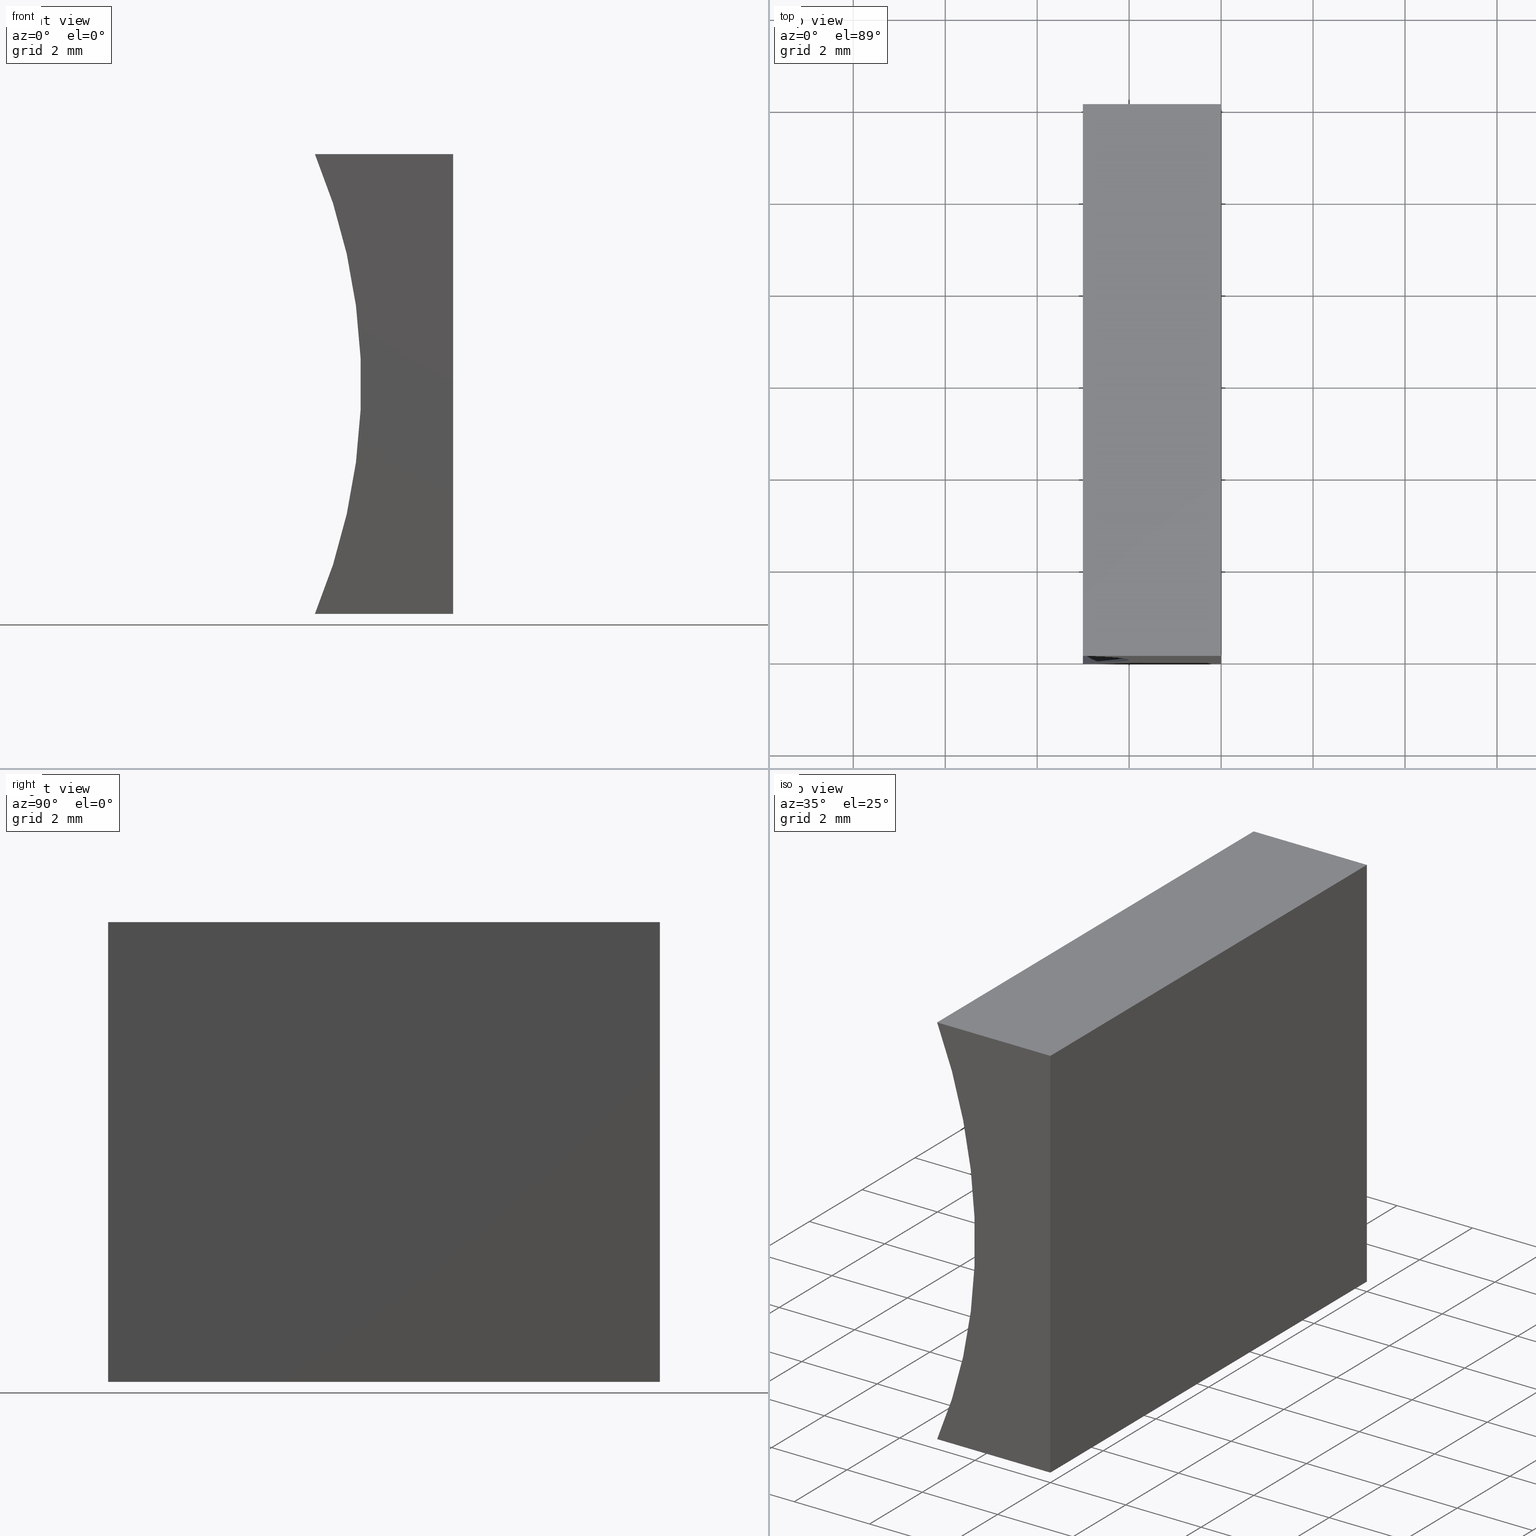
[diagram: canonical four-view strip — front | top / right | iso, engineering-drawing reading convention]
A machine part, canonical four-view strip (front | top / right | iso — engineering-drawing reading convention). The complete STEP part file that produces these views, byte-faithful:
ISO-10303-21;
HEADER;
FILE_DESCRIPTION (( 'STEP AP214' ),
    '1' );
FILE_NAME ('155340.STEP',
    '2019-06-28T02:10:09',
    ( 'user' ),
    ( '΢���й�' ),
    'SwSTEP 2.0',
    'SolidWorks 2016',
    '' );
FILE_SCHEMA (( 'AUTOMOTIVE_DESIGN' ));
ENDSEC;

DATA;
#1 = LINE ( 'NONE', #194, #73 ) ;
#2 = STYLED_ITEM ( 'NONE', ( #71 ), #20 ) ;
#3 = SURFACE_STYLE_USAGE ( .BOTH. , #90 ) ;
#4 = AXIS2_PLACEMENT_3D ( 'NONE', #57, #193, #155 ) ;
#5 =( GEOMETRIC_REPRESENTATION_CONTEXT ( 3 ) GLOBAL_UNCERTAINTY_ASSIGNED_CONTEXT ( ( #49 ) ) GLOBAL_UNIT_ASSIGNED_CONTEXT ( ( #60, #128, #200 ) ) REPRESENTATION_CONTEXT ( 'NONE', 'WORKASPACE' ) );
#6 = DIRECTION ( 'NONE',  ( -0.0000000000000000000, -1.000000000000000000, -0.0000000000000000000 ) ) ;
#7 = ORIENTED_EDGE ( 'NONE', *, *, #147, .F. ) ;
#8 = LINE ( 'NONE', #26, #48 ) ;
#9 = DIRECTION ( 'NONE',  ( -0.0000000000000000000, -1.000000000000000000, -0.0000000000000000000 ) ) ;
#10 = AXIS2_PLACEMENT_3D ( 'NONE', #66, #125, #27 ) ;
#11 = UNCERTAINTY_MEASURE_WITH_UNIT (LENGTH_MEASURE( 1.000000000000000100E-005 ), #76, 'distance_accuracy_value', 'NONE');
#12 =( LENGTH_UNIT ( ) NAMED_UNIT ( * ) SI_UNIT ( .MILLI., .METRE. ) );
#13 = DIRECTION ( 'NONE',  ( -1.000000000000000000, 0.0000000000000000000, 6.123233995736766000E-017 ) ) ;
#14 = DIRECTION ( 'NONE',  ( 0.0000000000000000000, -0.0000000000000000000, 1.000000000000000000 ) ) ;
#15 = EDGE_LOOP ( 'NONE', ( #143, #192, #18, #116 ) ) ;
#16 = FACE_OUTER_BOUND ( 'NONE', #33, .T. ) ;
#17 = PRESENTATION_LAYER_ASSIGNMENT (  '', '', ( #44 ) ) ;
#18 = ORIENTED_EDGE ( 'NONE', *, *, #149, .T. ) ;
#19 = PRODUCT_DEFINITION_SHAPE ( 'NONE', 'NONE',  #175 ) ;
#20 = MANIFOLD_SOLID_BREP ( '͹̨-����1', #63 ) ;
#21 = AXIS2_PLACEMENT_3D ( 'NONE', #104, #6, #93 ) ;
#22 = FILL_AREA_STYLE ('',( #163 ) ) ;
#23 =( NAMED_UNIT ( * ) SI_UNIT ( $, .STERADIAN. ) SOLID_ANGLE_UNIT ( ) );
#24 = ORIENTED_EDGE ( 'NONE', *, *, #77, .T. ) ;
#25 = ORIENTED_EDGE ( 'NONE', *, *, #152, .F. ) ;
#26 = CARTESIAN_POINT ( 'NONE',  ( 0.0000000000000000000, 0.0000000000000000000, 0.0000000000000000000 ) ) ;
#27 = DIRECTION ( 'NONE',  ( 1.000000000000000000, 0.0000000000000000000, -5.771121341056380500E-016 ) ) ;
#28 = DIRECTION ( 'NONE',  ( 6.123233995736766000E-017, 0.0000000000000000000, 1.000000000000000000 ) ) ;
#29 = DIRECTION ( 'NONE',  ( 5.771121341056381500E-016, 0.0000000000000000000, -1.000000000000000000 ) ) ;
#30 = ADVANCED_FACE ( 'NONE', ( #139 ), #31, .F. ) ;
#31 = PLANE ( 'NONE',  #179 ) ;
#32 = CARTESIAN_POINT ( 'NONE',  ( -3.005869004409587500, 0.0000000000000000000, 9.999999999999998200 ) ) ;
#33 = EDGE_LOOP ( 'NONE', ( #24, #7, #84, #86 ) ) ;
#34 = VECTOR ( 'NONE', #182, 1000.000000000000000 ) ;
#35 = ORIENTED_EDGE ( 'NONE', *, *, #149, .F. ) ;
#36 = DIRECTION ( 'NONE',  ( -6.123233995736766000E-017, -0.0000000000000000000, -1.000000000000000000 ) ) ;
#37 = PRODUCT_CONTEXT ( 'NONE', #102, 'mechanical' ) ;
#38 = LINE ( 'NONE', #202, #196 ) ;
#39 = EDGE_CURVE ( 'NONE', #61, #51, #150, .T. ) ;
#40 = ADVANCED_FACE ( 'NONE', ( #165 ), #126, .F. ) ;
#41 = DIRECTION ( 'NONE',  ( 0.0000000000000000000, 0.0000000000000000000, -1.000000000000000000 ) ) ;
#42 = CARTESIAN_POINT ( 'NONE',  ( -3.005869004409587500, 12.00000000000000000, 9.999999999999998200 ) ) ;
#43 = CARTESIAN_POINT ( 'NONE',  ( 0.0000000000000000000, 12.00000000000000000, 0.0000000000000000000 ) ) ;
#44 = STYLED_ITEM ( 'NONE', ( #45 ), #74 ) ;
#45 = PRESENTATION_STYLE_ASSIGNMENT (( #3 ) ) ;
#46 = VECTOR ( 'NONE', #94, 1000.000000000000000 ) ;
#47 = SURFACE_STYLE_FILL_AREA ( #201 ) ;
#48 = VECTOR ( 'NONE', #36, 1000.000000000000000 ) ;
#49 = UNCERTAINTY_MEASURE_WITH_UNIT (LENGTH_MEASURE( 1.000000000000000100E-005 ), #60, 'distance_accuracy_value', 'NONE');
#50 = VECTOR ( 'NONE', #68, 1000.000000000000000 ) ;
#51 = VERTEX_POINT ( 'NONE', #43 ) ;
#52 = VECTOR ( 'NONE', #142, 1000.000000000000000 ) ;
#53 = VERTEX_POINT ( 'NONE', #96 ) ;
#54 = VERTEX_POINT ( 'NONE', #198 ) ;
#55 = APPLICATION_PROTOCOL_DEFINITION ( 'draft international standard', 'automotive_design', 1998, #138 ) ;
#56 = DIRECTION ( 'NONE',  ( -1.000000000000000000, 0.0000000000000000000, 5.771121341056380500E-016 ) ) ;
#57 = CARTESIAN_POINT ( 'NONE',  ( 0.0000000000000000000, 0.0000000000000000000, 0.0000000000000000000 ) ) ;
#58 = SURFACE_SIDE_STYLE ('',( #47 ) ) ;
#59 = CARTESIAN_POINT ( 'NONE',  ( 0.0000000000000000000, 12.00000000000000000, 0.0000000000000000000 ) ) ;
#60 =( LENGTH_UNIT ( ) NAMED_UNIT ( * ) SI_UNIT ( .MILLI., .METRE. ) );
#61 = VERTEX_POINT ( 'NONE', #82 ) ;
#62 = COLOUR_RGB ( '',1.000000000000000000, 1.000000000000000000, 1.000000000000000000 ) ;
#63 = CLOSED_SHELL ( 'NONE', ( #83, #97, #40, #181, #161, #30 ) ) ;
#64 = EDGE_LOOP ( 'NONE', ( #130, #79, #35, #122 ) ) ;
#65 = PRESENTATION_LAYER_ASSIGNMENT (  '', '', ( #2 ) ) ;
#66 = CARTESIAN_POINT ( 'NONE',  ( 0.0000000000000000000, 12.00000000000000000, 0.0000000000000000000 ) ) ;
#67 = CARTESIAN_POINT ( 'NONE',  ( 0.0000000000000000000, 12.00000000000000000, 0.0000000000000000000 ) ) ;
#68 = DIRECTION ( 'NONE',  ( -0.0000000000000000000, -1.000000000000000000, -0.0000000000000000000 ) ) ;
#69 = ORIENTED_EDGE ( 'NONE', *, *, #77, .F. ) ;
#70 = DIRECTION ( 'NONE',  ( 0.0000000000000000000, 1.000000000000000000, 0.0000000000000000000 ) ) ;
#71 = PRESENTATION_STYLE_ASSIGNMENT (( #109 ) ) ;
#72 = MECHANICAL_DESIGN_GEOMETRIC_PRESENTATION_REPRESENTATION (  '', ( #2 ), #170 ) ;
#73 = VECTOR ( 'NONE', #157, 1000.000000000000000 ) ;
#74 = ADVANCED_BREP_SHAPE_REPRESENTATION ( '155340', ( #20, #4 ), #5 ) ;
#75 = COLOUR_RGB ( '',1.000000000000000000, 1.000000000000000000, 1.000000000000000000 ) ;
#76 =( LENGTH_UNIT ( ) NAMED_UNIT ( * ) SI_UNIT ( .MILLI., .METRE. ) );
#77 = EDGE_CURVE ( 'NONE', #132, #120, #173, .T. ) ;
#78 = LINE ( 'NONE', #42, #46 ) ;
#79 = ORIENTED_EDGE ( 'NONE', *, *, #184, .F. ) ;
#80 = DIRECTION ( 'NONE',  ( 0.0000000000000000000, -0.0000000000000000000, 1.000000000000000000 ) ) ;
#81 = CYLINDRICAL_SURFACE ( 'NONE', #188, 12.93000000000000000 ) ;
#82 = CARTESIAN_POINT ( 'NONE',  ( 6.123233995736766300E-016, 12.00000000000000000, 10.00000000000000000 ) ) ;
#83 = ADVANCED_FACE ( 'NONE', ( #16 ), #140, .F. ) ;
#84 = ORIENTED_EDGE ( 'NONE', *, *, #168, .F. ) ;
#85 = LINE ( 'NONE', #137, #159 ) ;
#86 = ORIENTED_EDGE ( 'NONE', *, *, #171, .T. ) ;
#87 = MECHANICAL_DESIGN_GEOMETRIC_PRESENTATION_REPRESENTATION (  '', ( #44 ), #166 ) ;
#88 = ORIENTED_EDGE ( 'NONE', *, *, #39, .F. ) ;
#89 = PRODUCT_DEFINITION_FORMATION_WITH_SPECIFIED_SOURCE ( '�κ�', '', #118, .NOT_KNOWN. ) ;
#90 = SURFACE_SIDE_STYLE ('',( #156 ) ) ;
#91 = EDGE_LOOP ( 'NONE', ( #100, #172, #124, #101 ) ) ;
#92 = CARTESIAN_POINT ( 'NONE',  ( 0.0000000000000000000, 12.00000000000000000, 0.0000000000000000000 ) ) ;
#93 = DIRECTION ( 'NONE',  ( 0.0000000000000000000, 0.0000000000000000000, 1.000000000000000000 ) ) ;
#94 = DIRECTION ( 'NONE',  ( -0.0000000000000000000, -1.000000000000000000, -0.0000000000000000000 ) ) ;
#95 = CARTESIAN_POINT ( 'NONE',  ( 0.0000000000000000000, 0.0000000000000000000, 0.0000000000000000000 ) ) ;
#96 = CARTESIAN_POINT ( 'NONE',  ( -3.005869004409588400, 12.00000000000000000, 8.673617379884035500E-016 ) ) ;
#97 = ADVANCED_FACE ( 'NONE', ( #169 ), #81, .F. ) ;
#98 =( NAMED_UNIT ( * ) PLANE_ANGLE_UNIT ( ) SI_UNIT ( $, .RADIAN. ) );
#99 = DIRECTION ( 'NONE',  ( 1.000000000000000000, -0.0000000000000000000, 5.771121341056381500E-016 ) ) ;
#100 = ORIENTED_EDGE ( 'NONE', *, *, #134, .T. ) ;
#101 = ORIENTED_EDGE ( 'NONE', *, *, #147, .T. ) ;
#102 = APPLICATION_CONTEXT ( 'automotive_design' ) ;
#103 = VERTEX_POINT ( 'NONE', #158 ) ;
#104 = CARTESIAN_POINT ( 'NONE',  ( -14.93000000000000000, 0.0000000000000000000, 5.000000000000000900 ) ) ;
#105 = ORIENTED_EDGE ( 'NONE', *, *, #184, .T. ) ;
#106 = CARTESIAN_POINT ( 'NONE',  ( -14.93000000000000000, 12.00000000000000000, 5.000000000000000900 ) ) ;
#107 = UNCERTAINTY_MEASURE_WITH_UNIT (LENGTH_MEASURE( 1.000000000000000100E-005 ), #12, 'distance_accuracy_value', 'NONE');
#108 = DIRECTION ( 'NONE',  ( -1.000000000000000000, 0.0000000000000000000, -5.771121341056381500E-016 ) ) ;
#109 = SURFACE_STYLE_USAGE ( .BOTH. , #58 ) ;
#110 = PLANE ( 'NONE',  #146 ) ;
#111 = CARTESIAN_POINT ( 'NONE',  ( 6.123233995736766300E-016, 0.0000000000000000000, 10.00000000000000000 ) ) ;
#112 = PRODUCT_RELATED_PRODUCT_CATEGORY ( 'part', '', ( #118 ) ) ;
#113 = LINE ( 'NONE', #111, #204 ) ;
#114 = LINE ( 'NONE', #59, #52 ) ;
#115 = CIRCLE ( 'NONE', #129, 12.93000000000000000 ) ;
#116 = ORIENTED_EDGE ( 'NONE', *, *, #39, .T. ) ;
#117 = CIRCLE ( 'NONE', #21, 12.93000000000000000 ) ;
#118 = PRODUCT ( '155340', '155340', '', ( #37 ) ) ;
#119 = APPLICATION_PROTOCOL_DEFINITION ( 'draft international standard', 'automotive_design', 1998, #102 ) ;
#120 = VERTEX_POINT ( 'NONE', #178 ) ;
#121 = PRODUCT_DEFINITION_CONTEXT ( 'detailed design', #138, 'design' ) ;
#122 = ORIENTED_EDGE ( 'NONE', *, *, #190, .T. ) ;
#123 = VECTOR ( 'NONE', #56, 1000.000000000000000 ) ;
#124 = ORIENTED_EDGE ( 'NONE', *, *, #203, .F. ) ;
#125 = DIRECTION ( 'NONE',  ( 5.771121341056380500E-016, -0.0000000000000000000, 1.000000000000000000 ) ) ;
#126 = PLANE ( 'NONE',  #131 ) ;
#127 = DIRECTION ( 'NONE',  ( -0.0000000000000000000, -1.000000000000000000, -0.0000000000000000000 ) ) ;
#128 =( NAMED_UNIT ( * ) PLANE_ANGLE_UNIT ( ) SI_UNIT ( $, .RADIAN. ) );
#129 = AXIS2_PLACEMENT_3D ( 'NONE', #106, #195, #144 ) ;
#130 = ORIENTED_EDGE ( 'NONE', *, *, #152, .T. ) ;
#131 = AXIS2_PLACEMENT_3D ( 'NONE', #162, #29, #108 ) ;
#132 = VERTEX_POINT ( 'NONE', #95 ) ;
#133 = ORIENTED_EDGE ( 'NONE', *, *, #136, .T. ) ;
#134 = EDGE_CURVE ( 'NONE', #120, #154, #117, .T. ) ;
#135 = EDGE_LOOP ( 'NONE', ( #69, #187, #25, #148 ) ) ;
#136 = EDGE_CURVE ( 'NONE', #103, #132, #8, .T. ) ;
#137 = CARTESIAN_POINT ( 'NONE',  ( -3.005869004409588400, 12.00000000000000000, 8.673617379884035500E-016 ) ) ;
#138 = APPLICATION_CONTEXT ( 'automotive_design' ) ;
#139 = FACE_OUTER_BOUND ( 'NONE', #135, .T. ) ;
#140 = PLANE ( 'NONE',  #10 ) ;
#141 = DIRECTION ( 'NONE',  ( 0.0000000000000000000, 1.000000000000000000, 0.0000000000000000000 ) ) ;
#142 = DIRECTION ( 'NONE',  ( -1.000000000000000000, 0.0000000000000000000, 5.771121341056380500E-016 ) ) ;
#143 = ORIENTED_EDGE ( 'NONE', *, *, #168, .T. ) ;
#144 = DIRECTION ( 'NONE',  ( 0.0000000000000000000, 0.0000000000000000000, 1.000000000000000000 ) ) ;
#145 = SHAPE_DEFINITION_REPRESENTATION ( #19, #74 ) ;
#146 = AXIS2_PLACEMENT_3D ( 'NONE', #92, #13, #28 ) ;
#147 = EDGE_CURVE ( 'NONE', #53, #120, #85, .T. ) ;
#148 = ORIENTED_EDGE ( 'NONE', *, *, #134, .F. ) ;
#149 = EDGE_CURVE ( 'NONE', #54, #61, #1, .T. ) ;
#150 = LINE ( 'NONE', #67, #34 ) ;
#151 = FACE_OUTER_BOUND ( 'NONE', #176, .T. ) ;
#152 = EDGE_CURVE ( 'NONE', #154, #103, #113, .T. ) ;
#153 = FACE_OUTER_BOUND ( 'NONE', #15, .T. ) ;
#154 = VERTEX_POINT ( 'NONE', #32 ) ;
#155 = DIRECTION ( 'NONE',  ( 1.000000000000000000, 0.0000000000000000000, 0.0000000000000000000 ) ) ;
#156 = SURFACE_STYLE_FILL_AREA ( #22 ) ;
#157 = DIRECTION ( 'NONE',  ( 1.000000000000000000, -0.0000000000000000000, 5.771121341056381500E-016 ) ) ;
#158 = CARTESIAN_POINT ( 'NONE',  ( 6.123233995736766300E-016, 0.0000000000000000000, 10.00000000000000000 ) ) ;
#159 = VECTOR ( 'NONE', #180, 1000.000000000000000 ) ;
#160 = CARTESIAN_POINT ( 'NONE',  ( 0.0000000000000000000, 0.0000000000000000000, 0.0000000000000000000 ) ) ;
#161 = ADVANCED_FACE ( 'NONE', ( #153 ), #186, .T. ) ;
#162 = CARTESIAN_POINT ( 'NONE',  ( 6.123233995736766300E-016, 12.00000000000000000, 10.00000000000000000 ) ) ;
#163 = FILL_AREA_STYLE_COLOUR ( '', #75 ) ;
#164 = CARTESIAN_POINT ( 'NONE',  ( -14.93000000000000000, 0.0000000000000000000, 5.000000000000000900 ) ) ;
#165 = FACE_OUTER_BOUND ( 'NONE', #64, .T. ) ;
#166 =( GEOMETRIC_REPRESENTATION_CONTEXT ( 3 ) GLOBAL_UNCERTAINTY_ASSIGNED_CONTEXT ( ( #11 ) ) GLOBAL_UNIT_ASSIGNED_CONTEXT ( ( #76, #191, #23 ) ) REPRESENTATION_CONTEXT ( 'NONE', 'WORKASPACE' ) );
#167 = LINE ( 'NONE', #183, #50 ) ;
#168 = EDGE_CURVE ( 'NONE', #51, #53, #114, .T. ) ;
#169 = FACE_OUTER_BOUND ( 'NONE', #91, .T. ) ;
#170 =( GEOMETRIC_REPRESENTATION_CONTEXT ( 3 ) GLOBAL_UNCERTAINTY_ASSIGNED_CONTEXT ( ( #107 ) ) GLOBAL_UNIT_ASSIGNED_CONTEXT ( ( #12, #98, #199 ) ) REPRESENTATION_CONTEXT ( 'NONE', 'WORKASPACE' ) );
#171 = EDGE_CURVE ( 'NONE', #51, #132, #38, .T. ) ;
#172 = ORIENTED_EDGE ( 'NONE', *, *, #190, .F. ) ;
#173 = LINE ( 'NONE', #160, #123 ) ;
#174 = AXIS2_PLACEMENT_3D ( 'NONE', #177, #70, #80 ) ;
#175 = PRODUCT_DEFINITION ( 'δ֪', '', #89, #121 ) ;
#176 = EDGE_LOOP ( 'NONE', ( #133, #189, #88, #105 ) ) ;
#177 = CARTESIAN_POINT ( 'NONE',  ( -14.93000000000000000, 12.00000000000000000, 5.000000000000000900 ) ) ;
#178 = CARTESIAN_POINT ( 'NONE',  ( -3.005869004409588400, 0.0000000000000000000, 8.673617379884035500E-016 ) ) ;
#179 = AXIS2_PLACEMENT_3D ( 'NONE', #164, #141, #14 ) ;
#180 = DIRECTION ( 'NONE',  ( -0.0000000000000000000, -1.000000000000000000, -0.0000000000000000000 ) ) ;
#181 = ADVANCED_FACE ( 'NONE', ( #151 ), #110, .F. ) ;
#182 = DIRECTION ( 'NONE',  ( -6.123233995736766000E-017, -0.0000000000000000000, -1.000000000000000000 ) ) ;
#183 = CARTESIAN_POINT ( 'NONE',  ( 6.123233995736766300E-016, 12.00000000000000000, 10.00000000000000000 ) ) ;
#184 = EDGE_CURVE ( 'NONE', #61, #103, #167, .T. ) ;
#185 = FILL_AREA_STYLE_COLOUR ( '', #62 ) ;
#186 = PLANE ( 'NONE',  #174 ) ;
#187 = ORIENTED_EDGE ( 'NONE', *, *, #136, .F. ) ;
#188 = AXIS2_PLACEMENT_3D ( 'NONE', #197, #9, #41 ) ;
#189 = ORIENTED_EDGE ( 'NONE', *, *, #171, .F. ) ;
#190 = EDGE_CURVE ( 'NONE', #54, #154, #78, .T. ) ;
#191 =( NAMED_UNIT ( * ) PLANE_ANGLE_UNIT ( ) SI_UNIT ( $, .RADIAN. ) );
#192 = ORIENTED_EDGE ( 'NONE', *, *, #203, .T. ) ;
#193 = DIRECTION ( 'NONE',  ( 0.0000000000000000000, 0.0000000000000000000, 1.000000000000000000 ) ) ;
#194 = CARTESIAN_POINT ( 'NONE',  ( 6.123233995736766300E-016, 12.00000000000000000, 10.00000000000000000 ) ) ;
#195 = DIRECTION ( 'NONE',  ( -0.0000000000000000000, -1.000000000000000000, -0.0000000000000000000 ) ) ;
#196 = VECTOR ( 'NONE', #127, 1000.000000000000000 ) ;
#197 = CARTESIAN_POINT ( 'NONE',  ( -14.93000000000000000, 12.00000000000000000, 5.000000000000000900 ) ) ;
#198 = CARTESIAN_POINT ( 'NONE',  ( -3.005869004409587500, 12.00000000000000000, 9.999999999999998200 ) ) ;
#199 =( NAMED_UNIT ( * ) SI_UNIT ( $, .STERADIAN. ) SOLID_ANGLE_UNIT ( ) );
#200 =( NAMED_UNIT ( * ) SI_UNIT ( $, .STERADIAN. ) SOLID_ANGLE_UNIT ( ) );
#201 = FILL_AREA_STYLE ('',( #185 ) ) ;
#202 = CARTESIAN_POINT ( 'NONE',  ( 0.0000000000000000000, 12.00000000000000000, 0.0000000000000000000 ) ) ;
#203 = EDGE_CURVE ( 'NONE', #53, #54, #115, .T. ) ;
#204 = VECTOR ( 'NONE', #99, 1000.000000000000000 ) ;
ENDSEC;
END-ISO-10303-21;
